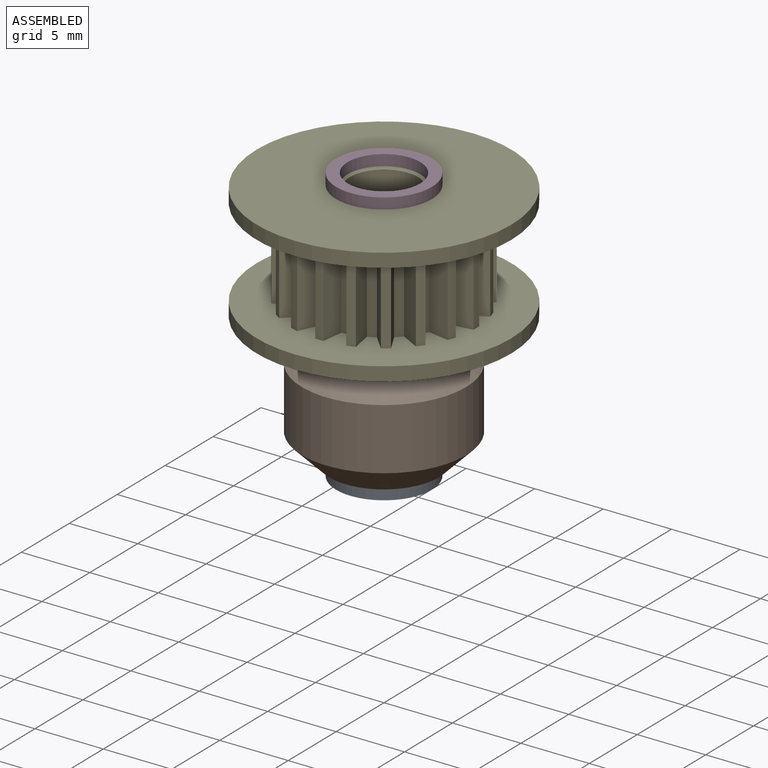
[diagram: assembled view]
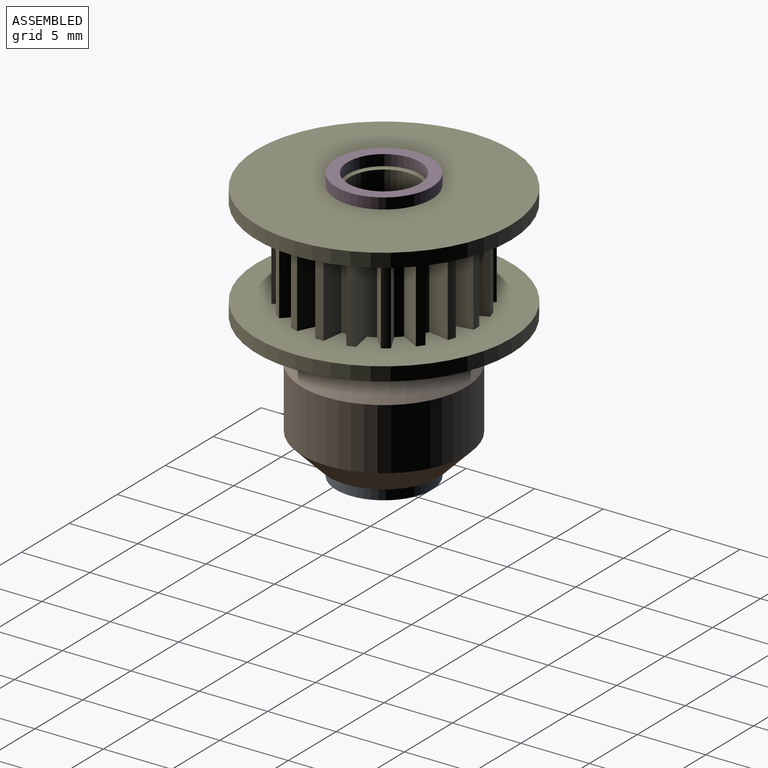
[diagram: assembled view, second angle]
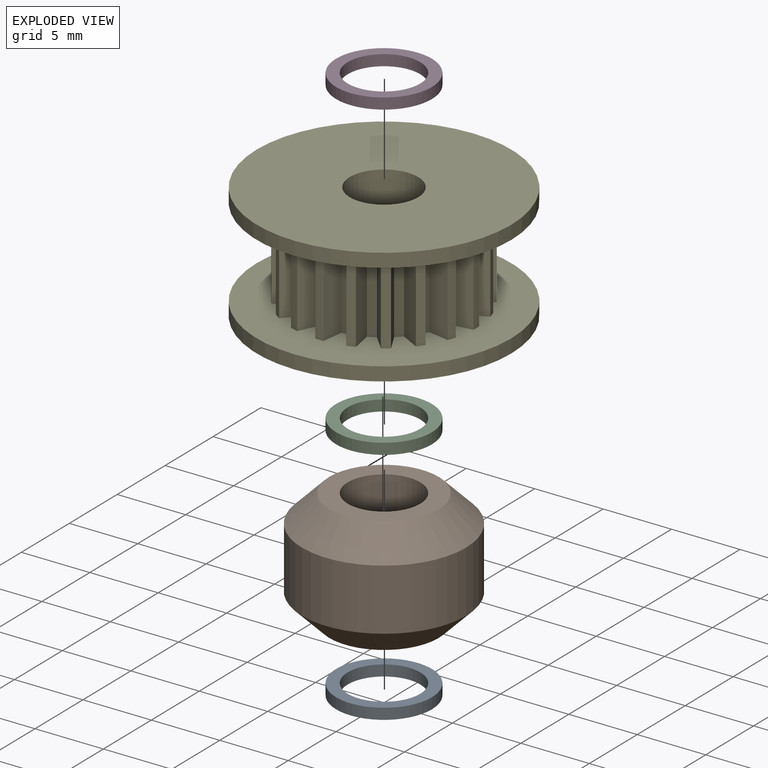
[diagram: exploded view]
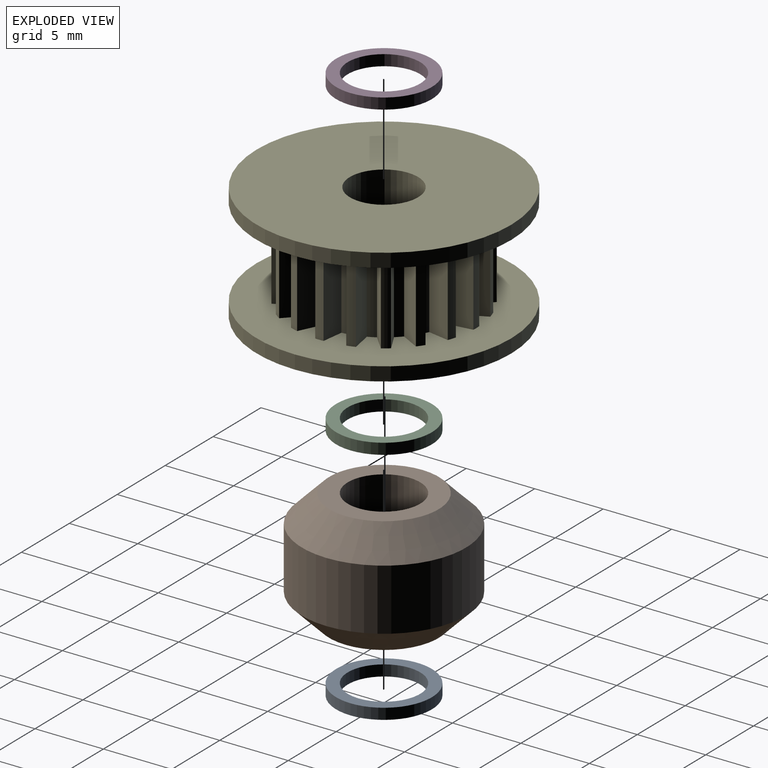
[diagram: exploded view, second angle]
ASSEMBLY  parts=5 mates=4
PART A: 4 faces, bbox 7x7x0.8 mm
  f0: plane 7x7mm, normal (0,0,1), area 16.4mm2, adj f1,f3
  f1: cylinder r=2.65mm len=5.3mm, axis (0,0,1), area 13.3mm2, adj f0,f2
  f2: plane 7x7mm, normal (0,0,-1), area 16.4mm2, adj f1,f3
  f3: cylinder r=3.5mm len=7mm, axis (0,0,1), area 17.6mm2, adj f0,f2
PART B: 6 faces, bbox 12x12x8.5 mm
  f0: plane 8x8mm, normal (0,0,1), area 28.2mm2, adj f1,f5
  f1: cylinder r=2.65mm len=8.5mm, axis (0,0,-1), area 141.5mm2, adj f0,f2
  f2: plane 8x8mm, normal (0,0,-1), area 28.2mm2, adj f1,f4
  f3: cylinder r=6mm len=12mm, axis (0,0,-1), area 169.6mm2, adj f4,f5
  f4: cone r=4mm half-angle=45deg, axis (0,0,1), area 88.9mm2, adj f2,f3
  f5: cone r=6mm half-angle=45deg, axis (0,0,-1), area 88.9mm2, adj f0,f3
PART C: same geometry as A
PART D: same geometry as A
PART E: 87 faces, bbox 18.6x18.6x8.5 mm
  f0: cylinder r=5.2mm len=6.5mm, axis (0,0,1), area 4mm2, adj f3,f5,f76,f78
  f1: plane 6.5x1.43mm, normal (0.43,-0.9,0), area 10.3mm2, adj f2,f76,f77,f78
  f2: cylinder r=6.75mm len=6.5mm, axis (0,0,-1), area 4mm2, adj f1,f3,f76,f78
  f3: plane 6.5x1.56mm, normal (-0.18,0.98,0), area 10.3mm2, adj f0,f2,f76,f78
  f4: cylinder r=5.2mm len=6.5mm, axis (0,0,1), area 4mm2, adj f7,f9,f76,f78
  f5: plane 6.5x1.15mm, normal (0.69,-0.73,0), area 10.3mm2, adj f0,f6,f76,f78
  f6: cylinder r=6.75mm len=6.5mm, axis (0,0,-1), area 4mm2, adj f5,f7,f76,f78
  f7: plane 6.5x1.39mm, normal (-0.48,0.88,0), area 10.3mm2, adj f4,f6,f76,f78
  f8: cylinder r=5.2mm len=6.5mm, axis (0,0,1), area 4mm2, adj f11,f13,f76,f78
  f9: plane 6.5x1.39mm, normal (0.88,-0.48,0), area 10.3mm2, adj f4,f10,f76,f78
  f10: cylinder r=6.75mm len=6.5mm, axis (0,0,-1), area 4mm2, adj f9,f11,f76,f78
  f11: plane 6.5x1.15mm, normal (-0.73,0.69,0), area 10.3mm2, adj f8,f10,f76,f78
  f12: cylinder r=5.2mm len=6.5mm, axis (0,0,1), area 4mm2, adj f15,f17,f76,f78
  f13: plane 6.5x1.56mm, normal (0.98,-0.18,0), area 10.3mm2, adj f8,f14,f76,f78
  f14: cylinder r=6.75mm len=6.5mm, axis (0,0,-1), area 4mm2, adj f13,f15,f76,f78
  f15: plane 6.5x1.43mm, normal (-0.9,0.43,0), area 10.3mm2, adj f12,f14,f76,f78
  f16: cylinder r=5.2mm len=6.5mm, axis (0,0,1), area 4mm2, adj f19,f21,f76,f78
  f17: plane 6.5x1.57mm, normal (0.99,0.13,0), area 10.3mm2, adj f12,f18,f76,f78
  f18: cylinder r=6.75mm len=6.5mm, axis (0,0,-1), area 4mm2, adj f17,f19,f76,f78
  f19: plane 6.5x1.57mm, normal (-0.99,0.13,0), area 10.3mm2, adj f16,f18,f76,f78
  f20: cylinder r=5.2mm len=6.5mm, axis (0,0,1), area 4mm2, adj f23,f25,f76,f78
  f21: plane 6.5x1.43mm, normal (0.9,0.43,0), area 10.3mm2, adj f16,f22,f76,f78
  f22: cylinder r=6.75mm len=6.5mm, axis (0,0,-1), area 4mm2, adj f21,f23,f76,f78
  f23: plane 6.5x1.56mm, normal (-0.98,-0.18,0), area 10.3mm2, adj f20,f22,f76,f78
  f24: cylinder r=5.2mm len=6.5mm, axis (0,0,1), area 4mm2, adj f27,f29,f76,f78
  f25: plane 6.5x1.15mm, normal (0.73,0.69,0), area 10.3mm2, adj f20,f26,f76,f78
  f26: cylinder r=6.75mm len=6.5mm, axis (0,0,-1), area 4mm2, adj f25,f27,f76,f78
  f27: plane 6.5x1.39mm, normal (-0.88,-0.48,0), area 10.3mm2, adj f24,f26,f76,f78
  f28: cylinder r=5.2mm len=6.5mm, axis (0,0,1), area 4mm2, adj f31,f33,f76,f78
  f29: plane 6.5x1.39mm, normal (0.48,0.88,0), area 10.3mm2, adj f24,f30,f76,f78
  f30: cylinder r=6.75mm len=6.5mm, axis (0,0,-1), area 4mm2, adj f29,f31,f76,f78
  f31: plane 6.5x1.15mm, normal (-0.69,-0.73,0), area 10.3mm2, adj f28,f30,f76,f78
  f32: cylinder r=5.2mm len=6.5mm, axis (0,0,1), area 4mm2, adj f35,f37,f76,f78
  f33: plane 6.5x1.56mm, normal (0.18,0.98,0), area 10.3mm2, adj f28,f34,f76,f78
  f34: cylinder r=6.75mm len=6.5mm, axis (0,0,-1), area 4mm2, adj f33,f35,f76,f78
  f35: plane 6.5x1.43mm, normal (-0.43,-0.9,0), area 10.3mm2, adj f32,f34,f76,f78
  f36: cylinder r=5.2mm len=6.5mm, axis (0,0,1), area 4mm2, adj f39,f41,f76,f78
  f37: plane 6.5x1.57mm, normal (-0.13,0.99,0), area 10.3mm2, adj f32,f38,f76,f78
  f38: cylinder r=6.75mm len=6.5mm, axis (0,0,-1), area 4mm2, adj f37,f39,f76,f78
  f39: plane 6.5x1.57mm, normal (-0.13,-0.99,0), area 10.3mm2, adj f36,f38,f76,f78
  f40: cylinder r=5.2mm len=6.5mm, axis (0,0,1), area 4mm2, adj f43,f45,f76,f78
  f41: plane 6.5x1.43mm, normal (-0.43,0.9,0), area 10.3mm2, adj f36,f42,f76,f78
  f42: cylinder r=6.75mm len=6.5mm, axis (0,0,-1), area 4mm2, adj f41,f43,f76,f78
  f43: plane 6.5x1.56mm, normal (0.18,-0.98,0), area 10.3mm2, adj f40,f42,f76,f78
  f44: cylinder r=5.2mm len=6.5mm, axis (0,0,1), area 4mm2, adj f47,f49,f76,f78
  f45: plane 6.5x1.15mm, normal (-0.69,0.73,0), area 10.3mm2, adj f40,f46,f76,f78
  f46: cylinder r=6.75mm len=6.5mm, axis (0,0,-1), area 4mm2, adj f45,f47,f76,f78
  f47: plane 6.5x1.39mm, normal (0.48,-0.88,0), area 10.3mm2, adj f44,f46,f76,f78
  f48: cylinder r=5.2mm len=6.5mm, axis (0,0,1), area 4mm2, adj f51,f53,f76,f78
  f49: plane 6.5x1.39mm, normal (-0.88,0.48,0), area 10.3mm2, adj f44,f50,f76,f78
  f50: cylinder r=6.75mm len=6.5mm, axis (0,0,-1), area 4mm2, adj f49,f51,f76,f78
  f51: plane 6.5x1.15mm, normal (0.73,-0.69,0), area 10.3mm2, adj f48,f50,f76,f78
  f52: cylinder r=5.2mm len=6.5mm, axis (0,0,1), area 4mm2, adj f55,f57,f76,f78
  f53: plane 6.5x1.56mm, normal (-0.98,0.18,0), area 10.3mm2, adj f48,f54,f76,f78
  f54: cylinder r=6.75mm len=6.5mm, axis (0,0,-1), area 4mm2, adj f53,f55,f76,f78
  f55: plane 6.5x1.43mm, normal (0.9,-0.43,0), area 10.3mm2, adj f52,f54,f76,f78
  f56: cylinder r=5.2mm len=6.5mm, axis (0,0,1), area 4mm2, adj f59,f61,f76,f78
  f57: plane 6.5x1.57mm, normal (-0.99,-0.13,0), area 10.3mm2, adj f52,f58,f76,f78
  f58: cylinder r=6.75mm len=6.5mm, axis (0,0,-1), area 4mm2, adj f57,f59,f76,f78
  f59: plane 6.5x1.57mm, normal (0.99,-0.13,0), area 10.3mm2, adj f56,f58,f76,f78
  f60: cylinder r=5.2mm len=6.5mm, axis (0,0,1), area 4mm2, adj f63,f65,f76,f78
  f61: plane 6.5x1.43mm, normal (-0.9,-0.43,0), area 10.3mm2, adj f56,f62,f76,f78
  f62: cylinder r=6.75mm len=6.5mm, axis (0,0,-1), area 4mm2, adj f61,f63,f76,f78
  f63: plane 6.5x1.56mm, normal (0.98,0.18,0), area 10.3mm2, adj f60,f62,f76,f78
  f64: cylinder r=5.2mm len=6.5mm, axis (0,0,1), area 4mm2, adj f67,f69,f76,f78
  f65: plane 6.5x1.15mm, normal (-0.73,-0.69,0), area 10.3mm2, adj f60,f66,f76,f78
  f66: cylinder r=6.75mm len=6.5mm, axis (0,0,-1), area 4mm2, adj f65,f67,f76,f78
  f67: plane 6.5x1.39mm, normal (0.88,0.48,0), area 10.3mm2, adj f64,f66,f76,f78
  f68: cylinder r=5.2mm len=6.5mm, axis (0,0,1), area 4mm2, adj f71,f73,f76,f78
  f69: plane 6.5x1.39mm, normal (-0.48,-0.88,0), area 10.3mm2, adj f64,f70,f76,f78
  f70: cylinder r=6.75mm len=6.5mm, axis (0,0,-1), area 4mm2, adj f69,f71,f76,f78
  f71: plane 6.5x1.15mm, normal (0.69,0.73,0), area 10.3mm2, adj f68,f70,f76,f78
  f72: cylinder r=5.2mm len=6.5mm, axis (0,0,1), area 4mm2, adj f75,f76,f78,f84
  f73: plane 6.5x1.56mm, normal (-0.18,-0.98,0), area 10.3mm2, adj f68,f74,f76,f78
  f74: cylinder r=6.75mm len=6.5mm, axis (0,0,-1), area 4mm2, adj f73,f75,f76,f78
  f75: plane 6.5x1.43mm, normal (0.43,0.9,0), area 10.3mm2, adj f72,f74,f76,f78
  f76: plane 18.6x18.6mm, normal (0,0,1), area 161.5mm2, adj f0,f1,f2,f3,f4,f5,f6,f7
  f77: cylinder r=5.2mm len=6.5mm, axis (0,0,1), area 4mm2, adj f1,f76,f78,f86
  f78: plane 18.6x18.6mm, normal (0,0,-1), area 161.5mm2, adj f0,f1,f2,f3,f4,f5,f6,f7
  f79: cylinder r=2.5mm len=8.5mm, axis (0,0,1), area 133.5mm2, adj f80,f83
  f80: plane 18.6x18.6mm, normal (0,0,-1), area 252.1mm2, adj f79,f81
  f81: cylinder r=9.3mm len=18.6mm, axis (0,0,1), area 58.4mm2, adj f76,f80
  f82: cylinder r=9.3mm len=18.6mm, axis (0,0,1), area 58.4mm2, adj f78,f83
  f83: plane 18.6x18.6mm, normal (0,0,1), area 252.1mm2, adj f79,f82
  f84: plane 6.5x1.57mm, normal (0.13,-0.99,0), area 10.3mm2, adj f72,f76,f78,f85
  f85: cylinder r=6.75mm len=6.5mm, axis (0,0,-1), area 4mm2, adj f76,f78,f84,f86
  f86: plane 6.5x1.57mm, normal (0.13,0.99,0), area 10.3mm2, adj f76,f77,f78,f85
PLACE A t=(0,0,-0.95)mm
PLACE B at identity fixed
PLACE C t=(0,0,8.65)mm
PLACE D t=(0,0,18.25)mm
PLACE E t=(0,0,9.6)mm
MATE fastened C.f1 <-> B.f1  axis (0,0,-1) through (0,0,8.65)mm
MATE fastened A.f1 <-> B.f1  axis (0,0,1) through (0,0,-0.15)mm
MATE fastened D.f1 <-> E.f0  axis (0,0,-1) through (0,0,18.25)mm
MATE fastened C.f1 <-> E.f0  axis (0,0,1) through (0,0,9.45)mm
